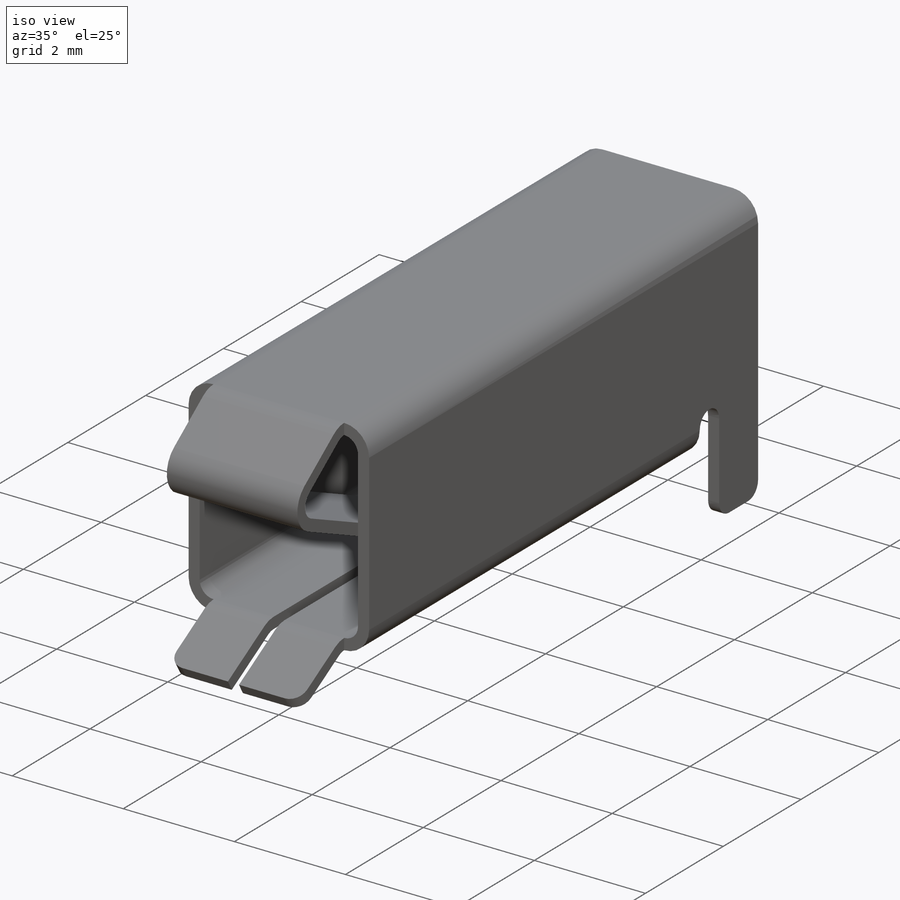
[diagram: iso view]
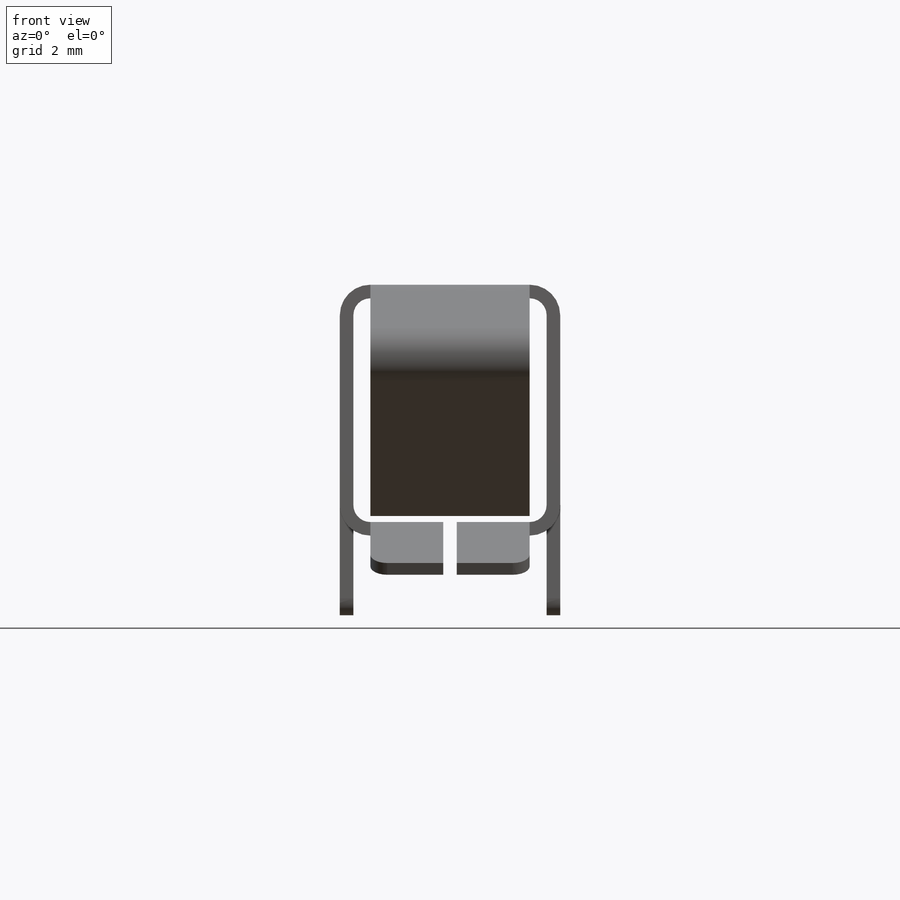
[diagram: front view]
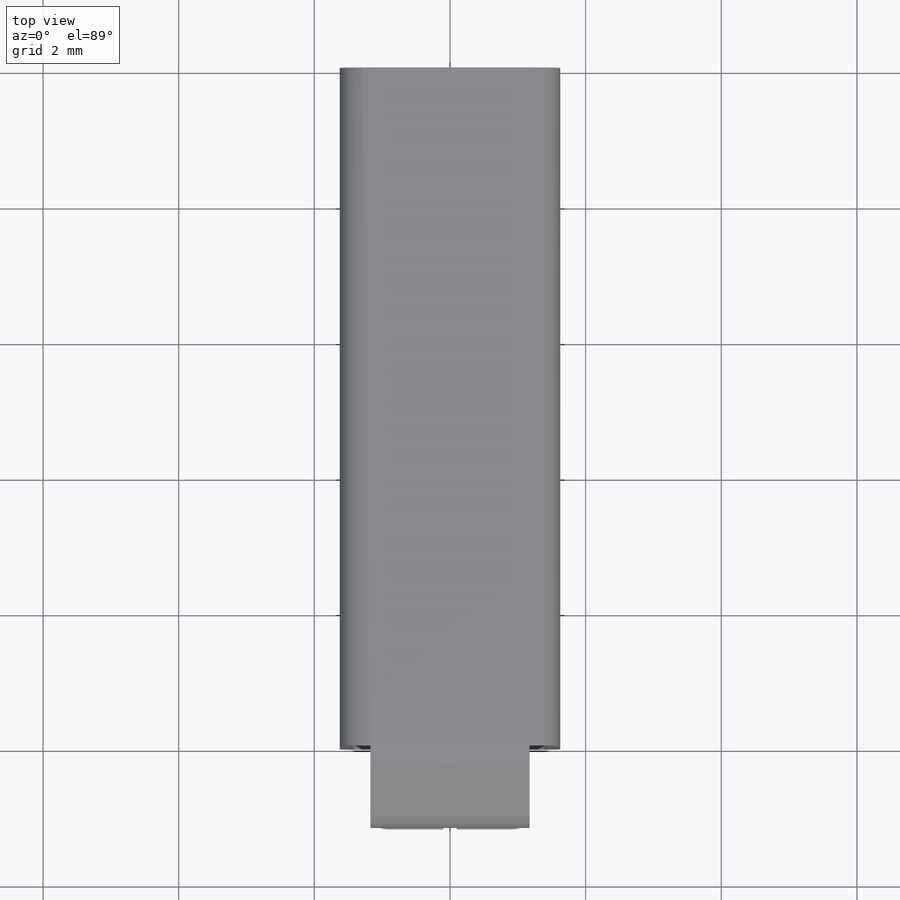
[diagram: top view]
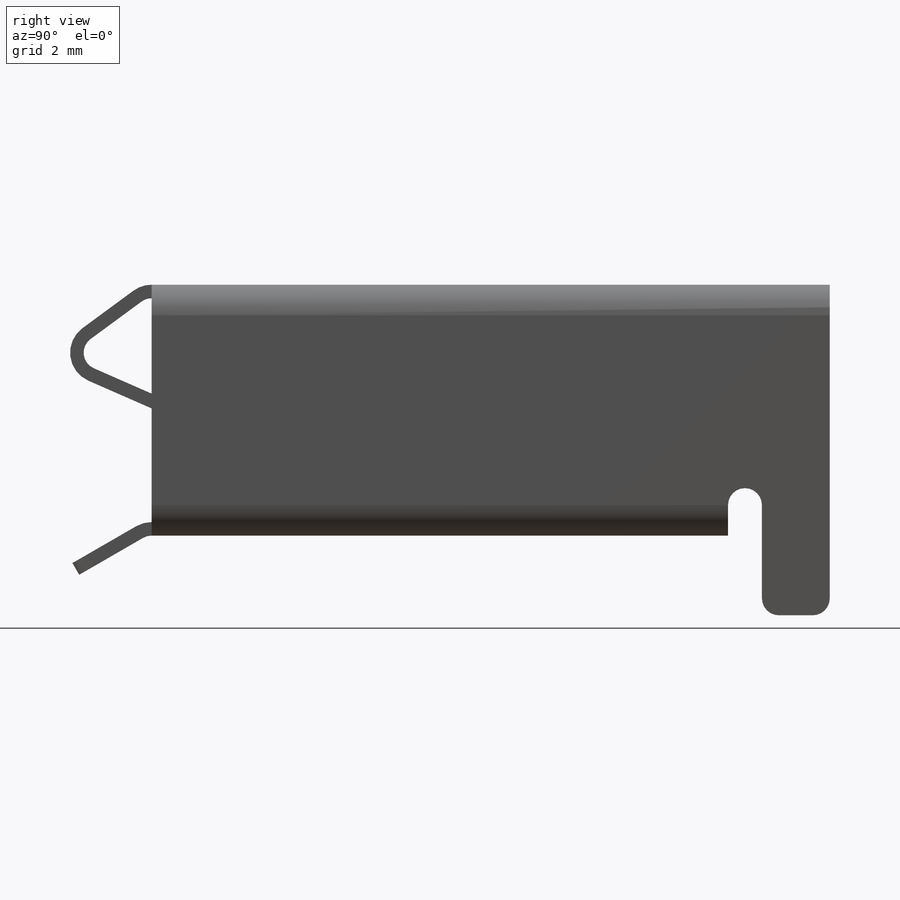
[diagram: right view]
SOLIDWORKS PART (.sldprt)
format: sldprt  version: not decoded by parser v0  size: 830,464 bytes
history: native  units: mm
features: sketch x14, sheet_metal_op x10, fillet x3, mirror x2, material x1, cut_extrude x1, extrude x1, plane x1 + 16 further entries (+12 scaffold rows collapsed; 5 parser-record rows omitted)
feature tree (66):
  scaffold x12  (default folders/planes/origin — collapsed)
  material  "Material <not specified>"
  sketch  "Sketch1"  dims[c1.D1=3.25mm c1.D2=3.25mm c1.D3=1.8mm c2.D1=0.25mm c2.D2=0.5 c2.D3=0.0mm c2.D6=500.0mm]
  sheet_metal_op  "Base-Flange1"
  sheet_metal_op  "BaseBend2"
  sketch  "Sketch6"  dims[D1=1.8mm D2=1.0mm]
  cut_extrude  "Cut-Extrude1"  [1 undecoded]
  sketch  "Sketch9"
  parser-record x5  (decoder bookkeeping rows leaked as tree rows — omitted from the tree; the rows remain in map.json)
  sketch  "Sketch10"
  extrude  "Sketched Bend3"  [1 undecoded]
  sketch  "Sketch12"  dims[c1.D1=~0.487821mm c2.D1=30.0deg c2.D2=1.0mm]
  sheet_metal_op  "Miterbend1"
  mirror  "Mirror1"
  sheet_metal_op  "MirrorBend1"
  plane  "Plane2"
  sketch  "Sketch19"  dims[c1.D1=0.25mm c1.D2=5.0mm c1.D3=~1.246556mm c2.D3=120.0deg c2.D4=~1.323302mm c3.D4=60.0deg]
  mirror  "Miter Flange7"
  sheet_metal_op  "Miterbend16"
  sheet_metal_op  "Miterbend19"
  sheet_metal_op  "Miterbend20"
  fillet  "Fillet1"  Radius=0.25mm
  sketch  "Bend-Lines1"
  sketch  "Bounding-Box1"
  sheet_metal_op  "Sheet-Metal(1)"
  "Flat-Pattern(1)"
  sketch  "Bend-Lines2"
  sketch  "Bounding-Box2"
  "Flatten-<BaseBend2>1"
  fillet  "Sheet-Metal(2)"  Radius=0.25mm
  sheet_metal_op  "Flat-Pattern(1)"
  sketch  "Bend-Lines3"
  sketch  "Bounding-Box3"
  "Flatten-<BaseBend1>2"
  "Flatten-<BaseBend2>2"
  "Flatten-<SketchBend2>1"
  "Flatten-<SketchBend3>1"
  "Flatten-<Miterbend1>1"
  fillet  "Sheet-Metal(3)"  Radius=0.25mm
  sheet_metal_op  "Flat-Pattern(1)"
  sketch  "Bend-Lines4"
  sketch  "Bounding-Box4"
  "Flatten-<BaseBend2>3"
  "Flatten-<BaseBend1>3"
  "Flatten-<SketchBend2>2"
  "Flatten-<SketchBend3>2"
  "Flatten-<Miterbend1>2"
  "Flatten-<MirrorBend1>1"
  "Flatten-<Miterbend16>1"
  "Flatten-<Miterbend19>1"
  "Flatten-<Miterbend20>1"
decode coverage: 7 of 31 modeling features carry decoded parameters; 16 rows unclassified (native names shown)
note: ~ marks probable driven/reference dimensions
note: 2 parameter values undecoded
note: suppression state not decoded; provenance and decode notes live in map.json
